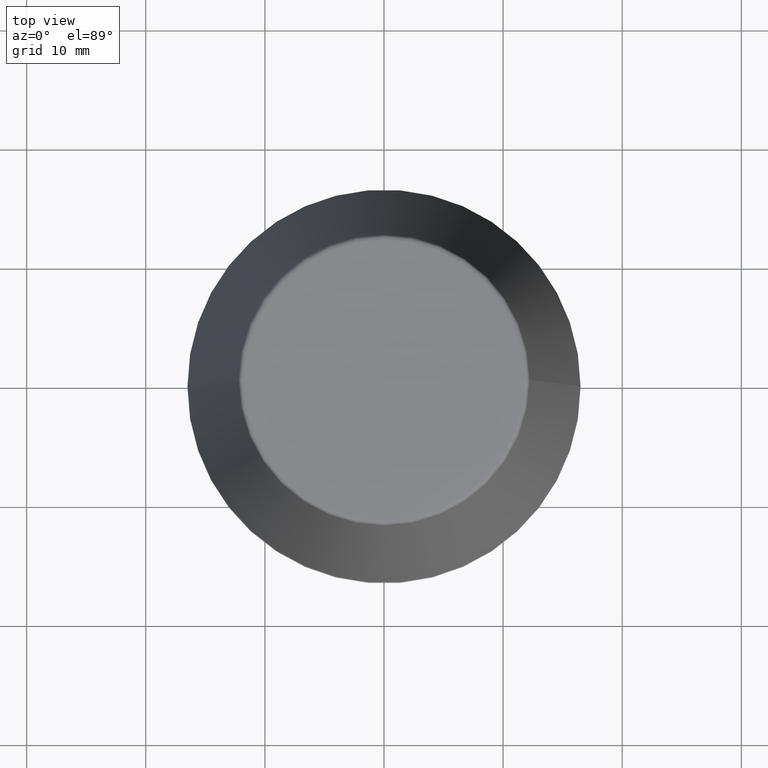
[diagram: clean part render]
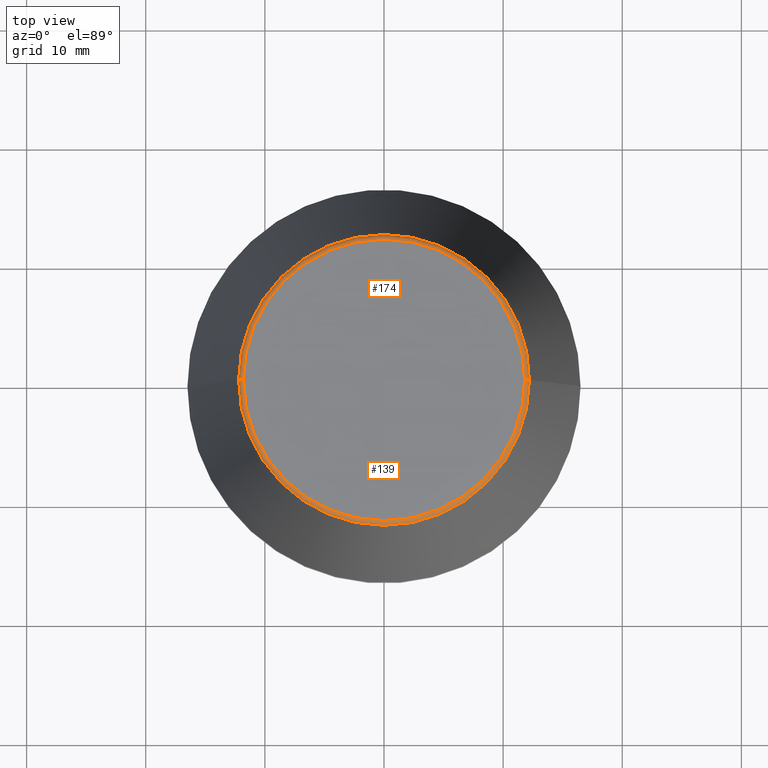
[diagram: same view with one multi-face feature highlighted, each face labeled with its STEP entity id]
A machine part, top view. The highlighted faces form ONE feature: a constant-radius fillet chain: 2 tangent blend faces with common blend radius 0.4 mm. The faces share edges in the B-rep.
Their STEP definitions:
[1] entity #139 (Torus):
#2 = ORIENTED_EDGE ( 'NONE', *, *, #175, .F. ) ;
#11 = ORIENTED_EDGE ( 'NONE', *, *, #55, .T. ) ;
#19 = EDGE_CURVE ( 'NONE', #315, #97, #305, .T. ) ;
#24 = DIRECTION ( 'NONE',  ( -0.0000000000000000000, -0.0000000000000000000, 1.000000000000000000 ) ) ;
#31 = DIRECTION ( 'NONE',  ( 0.0000000000000000000, 0.0000000000000000000, -1.000000000000000000 ) ) ;
#46 = ORIENTED_EDGE ( 'NONE', *, *, #277, .T. ) ;
#51 = CARTESIAN_POINT ( 'NONE',  ( 11.80989888411031400, 0.0000000000000000000, 40.00000000000000700 ) ) ;
#55 = EDGE_CURVE ( 'NONE', #315, #387, #287, .T. ) ;
#68 = CARTESIAN_POINT ( 'NONE',  ( 11.80989888411031400, 0.0000000000000000000, 39.60000000000000100 ) ) ;
#70 = CARTESIAN_POINT ( 'NONE',  ( -11.80989888411031400, 1.446295486667959300E-015, 39.60000000000000100 ) ) ;
#90 = AXIS2_PLACEMENT_3D ( 'NONE', #264, #205, #350 ) ;
#97 = VERTEX_POINT ( 'NONE', #153 ) ;
#111 = CARTESIAN_POINT ( 'NONE',  ( -12.20600611160694300, 0.0000000000000000000, 39.65566924038402900 ) ) ;
#123 = VERTEX_POINT ( 'NONE', #51 ) ;
#124 = EDGE_LOOP ( 'NONE', ( #147, #11, #46, #2 ) ) ;
#126 = DIRECTION ( 'NONE',  ( 1.000000000000000000, 0.0000000000000000000, 0.0000000000000000000 ) ) ;
#137 = AXIS2_PLACEMENT_3D ( 'NONE', #70, #280, #169 ) ;
#139 = ADVANCED_FACE ( 'NONE', ( #335 ), #150, .T. ) ;
#147 = ORIENTED_EDGE ( 'NONE', *, *, #19, .F. ) ;
#150 = TOROIDAL_SURFACE ( 'NONE', #202, 11.80989888411031400, 0.4000000000000026900 ) ;
#153 = CARTESIAN_POINT ( 'NONE',  ( -11.80989888411031400, 1.470550059081603400E-015, 40.00000000000000700 ) ) ;
#169 = DIRECTION ( 'NONE',  ( -1.000000000000000000, 1.224646799147352500E-016, 0.0000000000000000000 ) ) ;
#175 = EDGE_CURVE ( 'NONE', #97, #123, #386, .T. ) ;
#176 = CARTESIAN_POINT ( 'NONE',  ( 12.20600611160694300, 1.757755848304969800E-015, 39.65566924038402900 ) ) ;
#189 = AXIS2_PLACEMENT_3D ( 'NONE', #303, #191, #126 ) ;
#191 = DIRECTION ( 'NONE',  ( -0.0000000000000000000, -0.0000000000000000000, 1.000000000000000000 ) ) ;
#198 = CIRCLE ( 'NONE', #265, 0.4000000000000045200 ) ;
#202 = AXIS2_PLACEMENT_3D ( 'NONE', #241, #24, #381 ) ;
#205 = DIRECTION ( 'NONE',  ( -0.0000000000000000000, -0.0000000000000000000, 1.000000000000000000 ) ) ;
#241 = CARTESIAN_POINT ( 'NONE',  ( 0.0000000000000000000, 0.0000000000000000000, 39.60000000000000100 ) ) ;
#264 = CARTESIAN_POINT ( 'NONE',  ( 0.0000000000000000000, 0.0000000000000000000, 39.65566924038402900 ) ) ;
#265 = AXIS2_PLACEMENT_3D ( 'NONE', #68, #279, #31 ) ;
#277 = EDGE_CURVE ( 'NONE', #387, #123, #198, .T. ) ;
#279 = DIRECTION ( 'NONE',  ( 0.0000000000000000000, -1.000000000000000000, 0.0000000000000000000 ) ) ;
#280 = DIRECTION ( 'NONE',  ( 1.224646799147353200E-016, 1.000000000000000000, 0.0000000000000000000 ) ) ;
#287 = CIRCLE ( 'NONE', #90, 12.20600611160694300 ) ;
#303 = CARTESIAN_POINT ( 'NONE',  ( 0.0000000000000000000, 0.0000000000000000000, 40.00000000000000700 ) ) ;
#305 = CIRCLE ( 'NONE', #137, 0.4000000000000028000 ) ;
#315 = VERTEX_POINT ( 'NONE', #111 ) ;
#335 = FACE_OUTER_BOUND ( 'NONE', #124, .T. ) ;
#350 = DIRECTION ( 'NONE',  ( 1.000000000000000000, 0.0000000000000000000, 0.0000000000000000000 ) ) ;
#381 = DIRECTION ( 'NONE',  ( 1.000000000000000000, 0.0000000000000000000, 0.0000000000000000000 ) ) ;
#386 = CIRCLE ( 'NONE', #189, 11.80989888411031400 ) ;
#387 = VERTEX_POINT ( 'NONE', #176 ) ;
[2] entity #174 (Torus):
#5 = TOROIDAL_SURFACE ( 'NONE', #185, 11.80989888411031400, 0.4000000000000026900 ) ;
#19 = EDGE_CURVE ( 'NONE', #315, #97, #305, .T. ) ;
#31 = DIRECTION ( 'NONE',  ( 0.0000000000000000000, 0.0000000000000000000, -1.000000000000000000 ) ) ;
#36 = DIRECTION ( 'NONE',  ( -0.0000000000000000000, -0.0000000000000000000, 1.000000000000000000 ) ) ;
#51 = CARTESIAN_POINT ( 'NONE',  ( 11.80989888411031400, 0.0000000000000000000, 40.00000000000000700 ) ) ;
#68 = CARTESIAN_POINT ( 'NONE',  ( 11.80989888411031400, 0.0000000000000000000, 39.60000000000000100 ) ) ;
#70 = CARTESIAN_POINT ( 'NONE',  ( -11.80989888411031400, 1.446295486667959300E-015, 39.60000000000000100 ) ) ;
#75 = FACE_OUTER_BOUND ( 'NONE', #257, .T. ) ;
#77 = ORIENTED_EDGE ( 'NONE', *, *, #155, .F. ) ;
#97 = VERTEX_POINT ( 'NONE', #153 ) ;
#111 = CARTESIAN_POINT ( 'NONE',  ( -12.20600611160694300, 0.0000000000000000000, 39.65566924038402900 ) ) ;
#119 = ORIENTED_EDGE ( 'NONE', *, *, #277, .F. ) ;
#123 = VERTEX_POINT ( 'NONE', #51 ) ;
#125 = CIRCLE ( 'NONE', #199, 11.80989888411031400 ) ;
#137 = AXIS2_PLACEMENT_3D ( 'NONE', #70, #280, #169 ) ;
#152 = EDGE_CURVE ( 'NONE', #387, #315, #372, .T. ) ;
#153 = CARTESIAN_POINT ( 'NONE',  ( -11.80989888411031400, 1.470550059081603400E-015, 40.00000000000000700 ) ) ;
#155 = EDGE_CURVE ( 'NONE', #123, #97, #125, .T. ) ;
#169 = DIRECTION ( 'NONE',  ( -1.000000000000000000, 1.224646799147352500E-016, 0.0000000000000000000 ) ) ;
#172 = DIRECTION ( 'NONE',  ( 1.000000000000000000, 0.0000000000000000000, 0.0000000000000000000 ) ) ;
#174 = ADVANCED_FACE ( 'NONE', ( #75 ), #5, .T. ) ;
#176 = CARTESIAN_POINT ( 'NONE',  ( 12.20600611160694300, 1.757755848304969800E-015, 39.65566924038402900 ) ) ;
#185 = AXIS2_PLACEMENT_3D ( 'NONE', #200, #36, #358 ) ;
#198 = CIRCLE ( 'NONE', #265, 0.4000000000000045200 ) ;
#199 = AXIS2_PLACEMENT_3D ( 'NONE', #364, #313, #255 ) ;
#200 = CARTESIAN_POINT ( 'NONE',  ( 0.0000000000000000000, 0.0000000000000000000, 39.60000000000000100 ) ) ;
#219 = AXIS2_PLACEMENT_3D ( 'NONE', #288, #228, #172 ) ;
#228 = DIRECTION ( 'NONE',  ( -0.0000000000000000000, -0.0000000000000000000, 1.000000000000000000 ) ) ;
#239 = ORIENTED_EDGE ( 'NONE', *, *, #152, .T. ) ;
#255 = DIRECTION ( 'NONE',  ( 1.000000000000000000, 0.0000000000000000000, 0.0000000000000000000 ) ) ;
#257 = EDGE_LOOP ( 'NONE', ( #239, #382, #77, #119 ) ) ;
#265 = AXIS2_PLACEMENT_3D ( 'NONE', #68, #279, #31 ) ;
#277 = EDGE_CURVE ( 'NONE', #387, #123, #198, .T. ) ;
#279 = DIRECTION ( 'NONE',  ( 0.0000000000000000000, -1.000000000000000000, 0.0000000000000000000 ) ) ;
#280 = DIRECTION ( 'NONE',  ( 1.224646799147353200E-016, 1.000000000000000000, 0.0000000000000000000 ) ) ;
#288 = CARTESIAN_POINT ( 'NONE',  ( 0.0000000000000000000, 0.0000000000000000000, 39.65566924038402900 ) ) ;
#305 = CIRCLE ( 'NONE', #137, 0.4000000000000028000 ) ;
#313 = DIRECTION ( 'NONE',  ( -0.0000000000000000000, -0.0000000000000000000, 1.000000000000000000 ) ) ;
#315 = VERTEX_POINT ( 'NONE', #111 ) ;
#358 = DIRECTION ( 'NONE',  ( 1.000000000000000000, 0.0000000000000000000, 0.0000000000000000000 ) ) ;
#364 = CARTESIAN_POINT ( 'NONE',  ( 0.0000000000000000000, 0.0000000000000000000, 40.00000000000000700 ) ) ;
#372 = CIRCLE ( 'NONE', #219, 12.20600611160694300 ) ;
#382 = ORIENTED_EDGE ( 'NONE', *, *, #19, .T. ) ;
#387 = VERTEX_POINT ( 'NONE', #176 ) ;